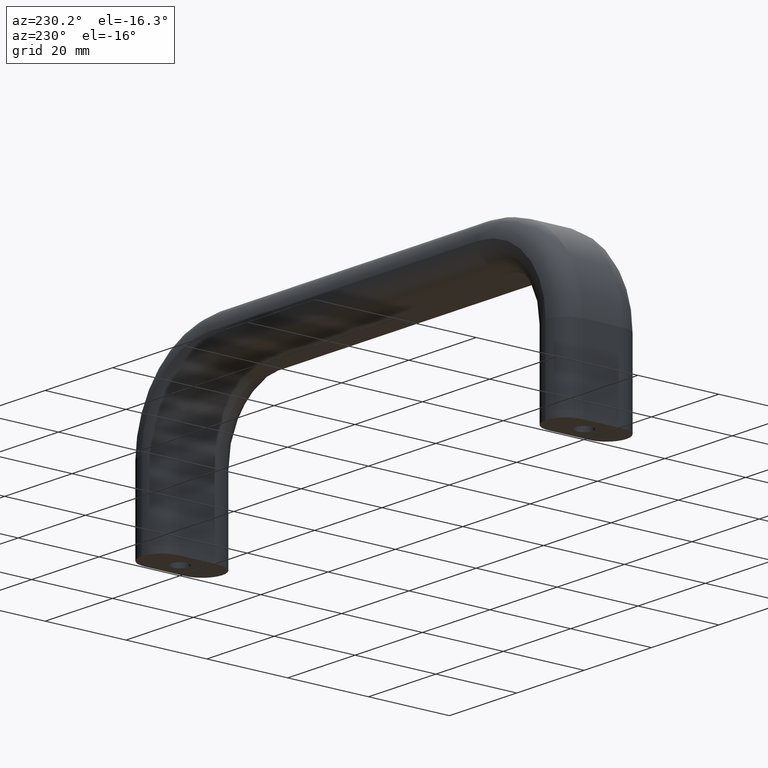
[diagram: clean part render]
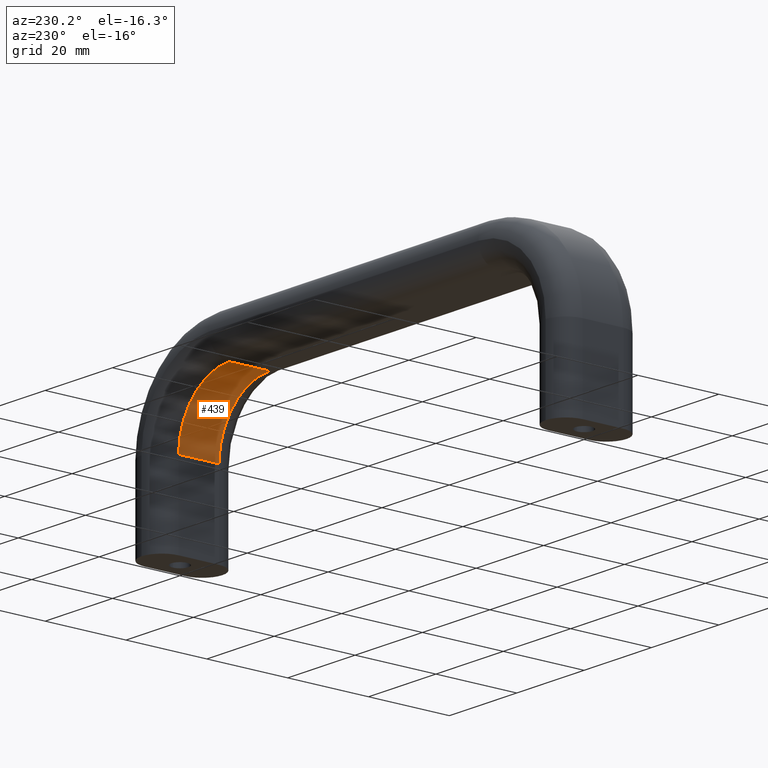
[diagram: same view with one face highlighted and labeled with its STEP entity id]
A machine part, auxiliary view. The second image highlights one B-rep face of the part: STEP entity #439.
In plain terms, the highlighted cylindrical surface (partial cylindrical patch) has radius 15 mm, axis along (0, 1, -0).
Its self-contained STEP definition (entity closure, byte-faithful):
#87=CARTESIAN_POINT('',(115.0,4.500000000000001,20.0));
#88=VERTEX_POINT('',#87);
#281=CARTESIAN_POINT('',(115.0,-5.499999999999999,20.0));
#282=VERTEX_POINT('',#281);
#395=CARTESIAN_POINT('',(115.0,4.500000000000002,20.0));
#396=DIRECTION('',(0.0,-1.0,0.0));
#397=VECTOR('',#396,10.0);
#398=LINE('',#395,#397);
#399=EDGE_CURVE('',#88,#282,#398,.T.);
#407=CARTESIAN_POINT('',(100.0,9.500000000000002,20.0));
#408=DIRECTION('',(0.0,1.0,-6.123234E-017));
#409=DIRECTION('',(6.123234E-017,6.123234E-017,1.0));
#410=AXIS2_PLACEMENT_3D('',#407,#408,#409);
#411=CYLINDRICAL_SURFACE('',#410,15.0);
#412=CARTESIAN_POINT('',(100.0,4.500000000000002,35.0));
#413=VERTEX_POINT('',#412);
#414=CARTESIAN_POINT('',(100.0,-5.499999999999998,35.0));
#415=VERTEX_POINT('',#414);
#416=CARTESIAN_POINT('',(100.0,4.500000000000002,35.0));
#417=DIRECTION('',(0.0,-1.0,0.0));
#418=VECTOR('',#417,10.0);
#419=LINE('',#416,#418);
#420=EDGE_CURVE('',#413,#415,#419,.T.);
#421=ORIENTED_EDGE('',*,*,#420,.F.);
#422=CARTESIAN_POINT('',(100.0,4.500000000000001,20.0));
#423=DIRECTION('',(0.0,1.0,-6.123234E-017));
#424=DIRECTION('',(1.0,0.0,0.0));
#425=AXIS2_PLACEMENT_3D('',#422,#423,#424);
#426=CIRCLE('',#425,15.0);
#427=EDGE_CURVE('',#413,#88,#426,.T.);
#428=ORIENTED_EDGE('',*,*,#427,.T.);
#429=ORIENTED_EDGE('',*,*,#399,.T.);
#430=CARTESIAN_POINT('',(100.0,-5.499999999999999,20.0));
#431=DIRECTION('',(0.0,1.0,-6.123234E-017));
#432=DIRECTION('',(1.0,0.0,0.0));
#433=AXIS2_PLACEMENT_3D('',#430,#431,#432);
#434=CIRCLE('',#433,15.0);
#435=EDGE_CURVE('',#415,#282,#434,.T.);
#436=ORIENTED_EDGE('',*,*,#435,.F.);
#437=EDGE_LOOP('',(#421,#428,#429,#436));
#438=FACE_OUTER_BOUND('',#437,.T.);
#439=ADVANCED_FACE('',(#438),#411,.F.);